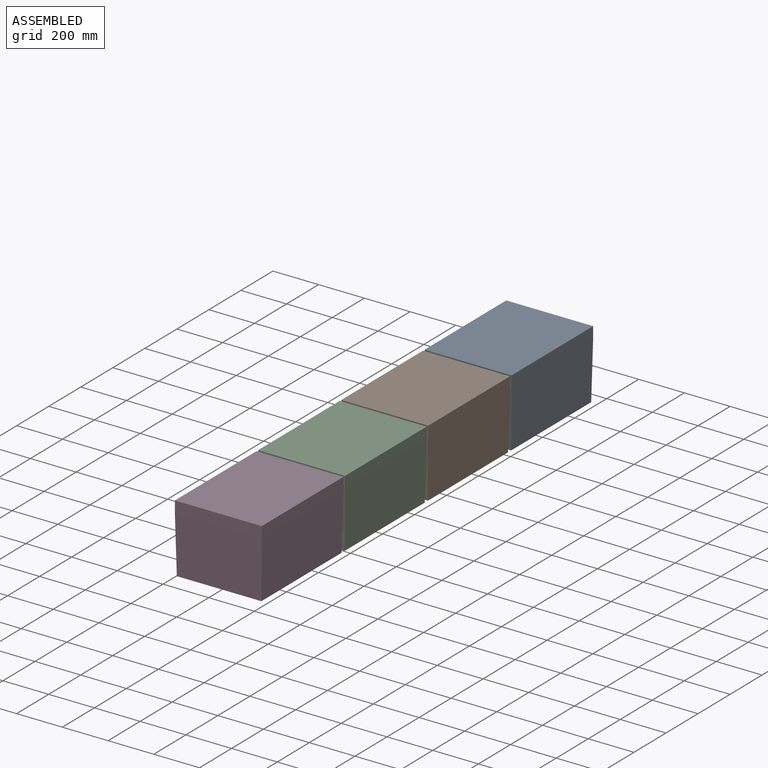
[diagram: assembled view]
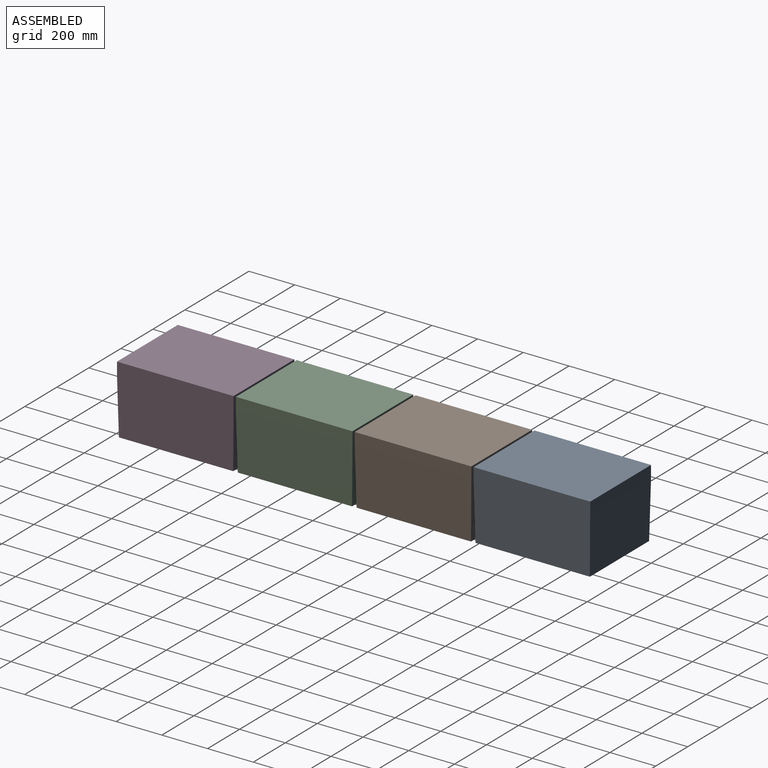
[diagram: assembled view, second angle]
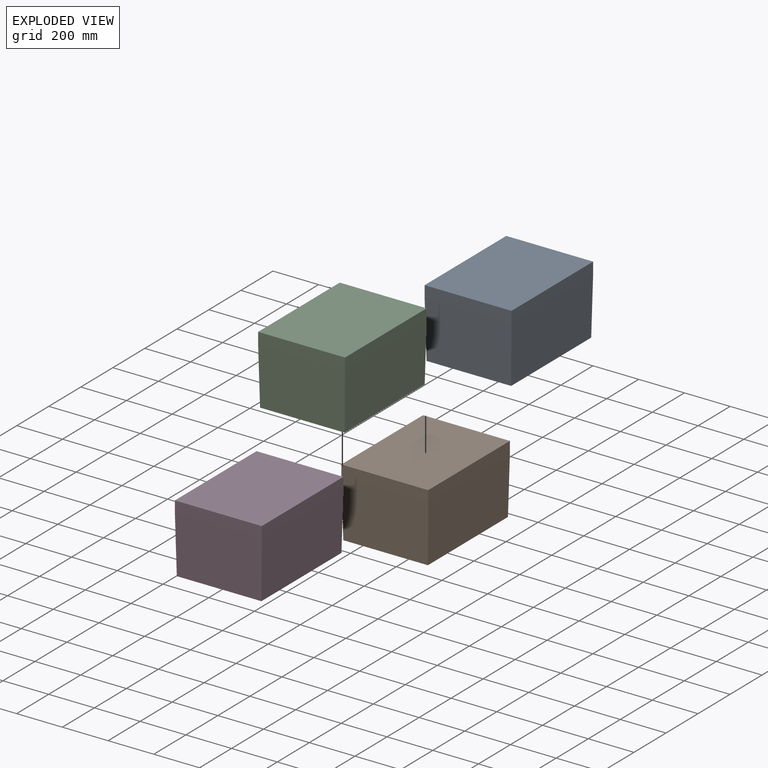
[diagram: exploded view]
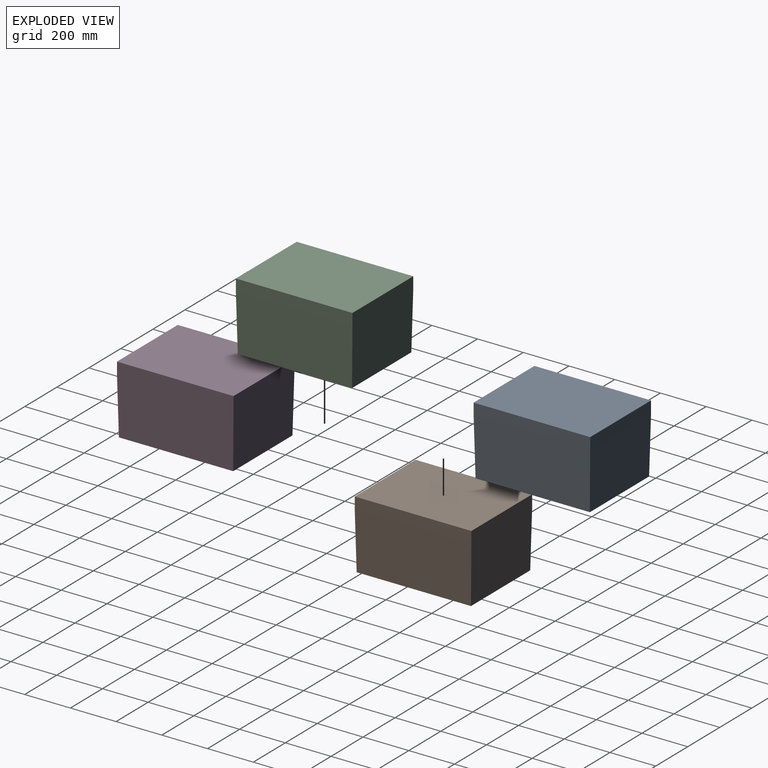
[diagram: exploded view, second angle]
ASSEMBLY  parts=4 mates=3
PART A: 10 faces, bbox 380x510x300 mm
  f0: plane 510x50mm, normal (1,0,0), area 25500mm2, adj f1,f3,f4,f9
  f1: plane 380x50mm, normal (0,1,0), area 19000mm2, adj f0,f2,f4,f7
  f2: plane 510x50mm, normal (-1,0,0), area 25500mm2, adj f1,f3,f4,f6
  f3: plane 380x50mm, normal (0,-1,0), area 19000mm2, adj f0,f2,f4,f8
  f4: plane 510x380mm, normal (0,0,1), area 193800mm2, adj f0,f1,f2,f3
  f5: plane 500x370mm, normal (0,0,-1), area 185000mm2, adj f6,f7,f8,f9
  f6: plane 510x250mm, normal (-1,0,-0.02), area 126275.2mm2, adj f2,f5,f7,f8
  f7: plane 380x250mm, normal (0,1,-0.02), area 93768.7mm2, adj f1,f5,f6,f9
  f8: plane 380x250mm, normal (0,-1,-0.02), area 93768.7mm2, adj f3,f5,f6,f9
  f9: plane 510x250mm, normal (1,0,-0.02), area 126275.2mm2, adj f0,f5,f7,f8
PART B: same geometry as A
PART C: same geometry as A
PART D: same geometry as A
PLACE A t=(-4903.49,-3379.7,-3073.94)mm
PLACE B t=(-4903.49,-3899.7,-3073.94)mm
PLACE C t=(-4903.49,-4419.7,-3073.94)mm
PLACE D t=(-4903.49,-4939.7,-3073.94)mm
MATE fastened C.f4 <-> D.f4  axis (0,0,1) through (-2260.07,-3505.51,-2768.94)mm
MATE fastened B.f4 <-> C.f4  axis (0,0,1) through (-2260.07,-2985.51,-2768.94)mm
MATE fastened A.f4 <-> B.f4  axis (0,0,1) through (-2260.07,-2465.51,-2768.94)mm
